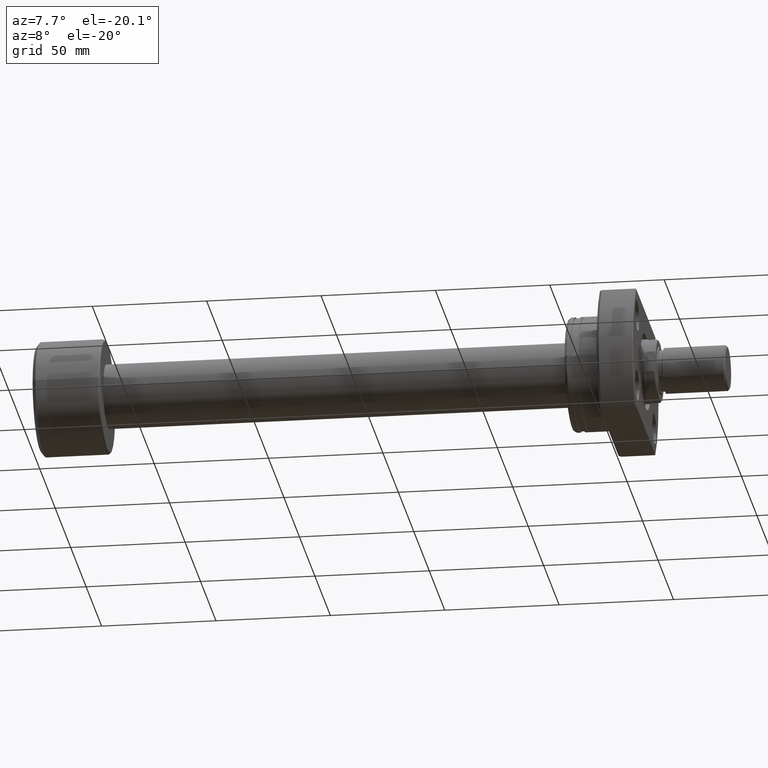
[diagram: clean part render]
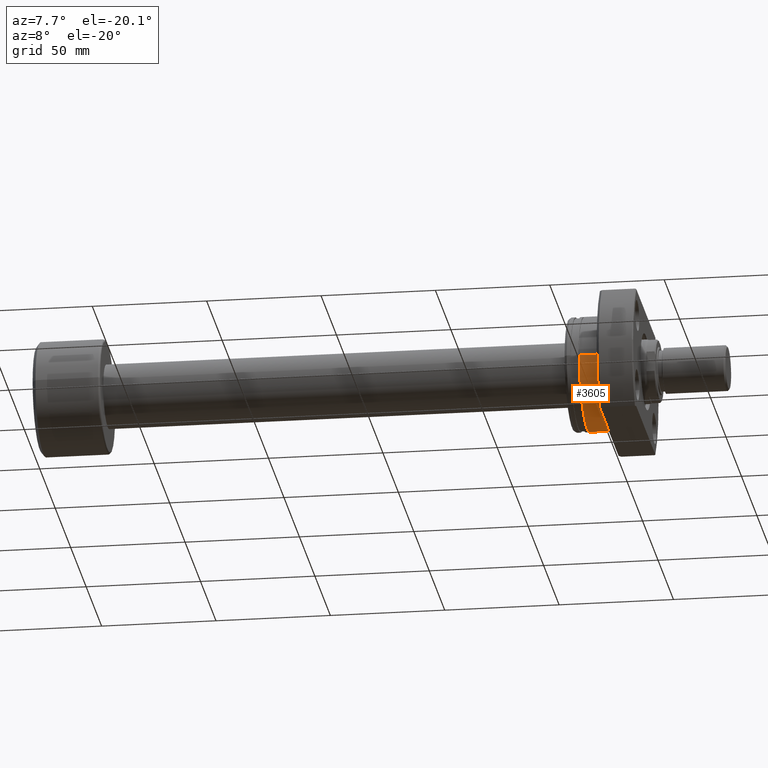
[diagram: same view with one face highlighted and labeled with its STEP entity id]
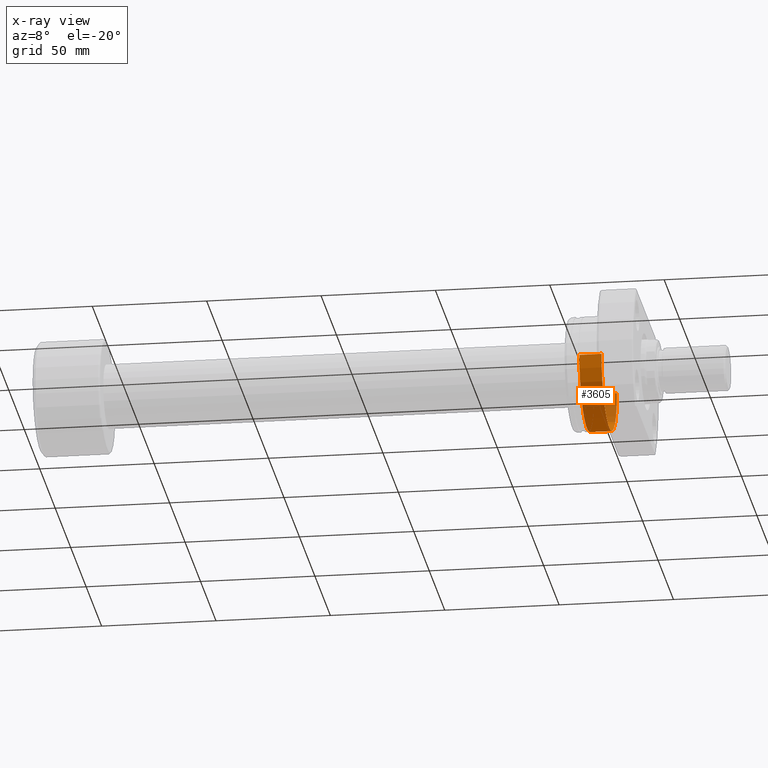
[diagram: x-ray of the same camera — body ghosted, the highlighted face saturated]
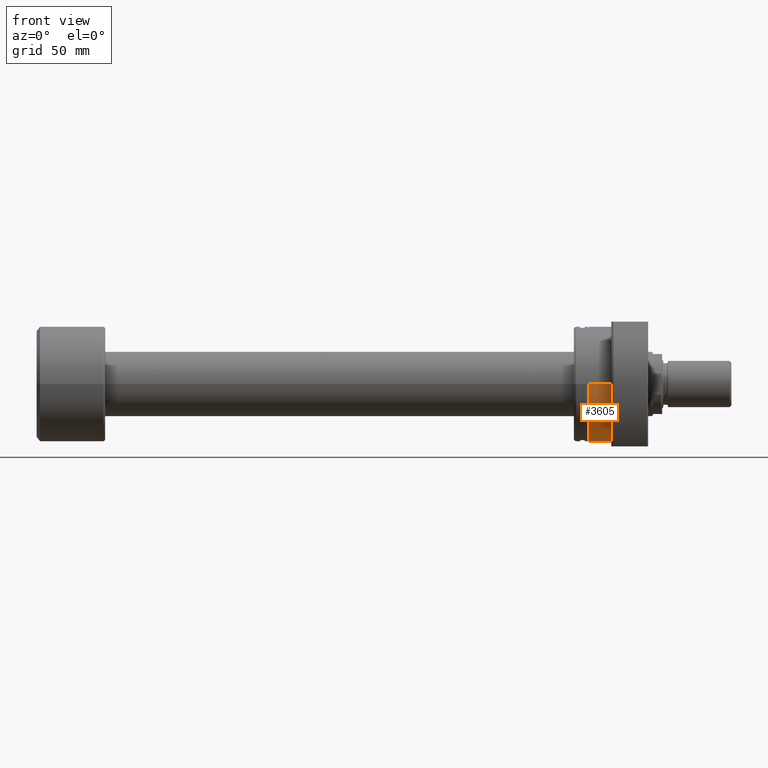
[diagram: same view with one face highlighted and labeled with its STEP entity id]
A machine part, auxiliary view. The second image highlights one B-rep face of the part: STEP entity #3605.
The next image is the same camera in x-ray: the body ghosted, the highlighted face saturated — about 16% of this face is hidden behind the body in this view.
A second angle (front view) of the same face is appended — the face is thin or edge-on in the first view.
In plain terms, the highlighted cylindrical surface (partial cylindrical patch) has radius 25 mm, axis along (1, 0, 0).
Its self-contained STEP definition (entity closure, byte-faithful):
#34 = CARTESIAN_POINT ( 'NONE',  ( 16.19999999999999929, -24.99999999999999645, 3.061616997868382648E-15 ) ) ;
#152 = VERTEX_POINT ( 'NONE', #1673 ) ;
#217 = DIRECTION ( 'NONE',  ( 0.000000000000000000, 1.000000000000000000, 0.000000000000000000 ) ) ;
#282 = FACE_OUTER_BOUND ( 'NONE', #721, .T. ) ;
#412 = EDGE_CURVE ( 'NONE', #543, #655, #3101, .T. ) ;
#464 = VECTOR ( 'NONE', #2814, 1000.000000000000000 ) ;
#499 = AXIS2_PLACEMENT_3D ( 'NONE', #2298, #568, #2230 ) ;
#521 = CYLINDRICAL_SURFACE ( 'NONE', #1891, 24.99999999999999645 ) ;
#543 = VERTEX_POINT ( 'NONE', #34 ) ;
#568 = DIRECTION ( 'NONE',  ( 1.000000000000000000, 2.928503215352364811E-17, -0.000000000000000000 ) ) ;
#655 = VERTEX_POINT ( 'NONE', #1088 ) ;
#721 = EDGE_LOOP ( 'NONE', ( #1759, #785, #914, #856 ) ) ;
#784 = DIRECTION ( 'NONE',  ( 1.000000000000000000, 2.928503215352364811E-17, -0.000000000000000000 ) ) ;
#785 = ORIENTED_EDGE ( 'NONE', *, *, #1040, .T. ) ;
#856 = ORIENTED_EDGE ( 'NONE', *, *, #412, .F. ) ;
#914 = ORIENTED_EDGE ( 'NONE', *, *, #3551, .T. ) ;
#928 = EDGE_CURVE ( 'NONE', #3682, #543, #1057, .T. ) ;
#1040 = EDGE_CURVE ( 'NONE', #3682, #152, #1097, .T. ) ;
#1057 = LINE ( 'NONE', #2203, #2899 ) ;
#1088 = CARTESIAN_POINT ( 'NONE',  ( 16.19999999999999929, 24.99999999999999645, 0.000000000000000000 ) ) ;
#1097 = CIRCLE ( 'NONE', #499, 24.99999999999999645 ) ;
#1458 = CARTESIAN_POINT ( 'NONE',  ( 6.499999999999784173, -24.99999999999999645, 3.061616997868382648E-15 ) ) ;
#1673 = CARTESIAN_POINT ( 'NONE',  ( 6.499999999999783284, 24.99999999999999645, 0.000000000000000000 ) ) ;
#1725 = DIRECTION ( 'NONE',  ( 0.000000000000000000, 1.000000000000000000, 0.000000000000000000 ) ) ;
#1759 = ORIENTED_EDGE ( 'NONE', *, *, #928, .F. ) ;
#1891 = AXIS2_PLACEMENT_3D ( 'NONE', #2530, #3152, #1725 ) ;
#1911 = CARTESIAN_POINT ( 'NONE',  ( 16.19999999999999929, 4.744175208870830402E-16, 0.000000000000000000 ) ) ;
#2203 = CARTESIAN_POINT ( 'NONE',  ( 32.20000000000000284, -24.99999999999999645, 3.061616997868382648E-15 ) ) ;
#2230 = DIRECTION ( 'NONE',  ( -3.469446951953614805E-17, 1.000000000000000000, 0.000000000000000000 ) ) ;
#2292 = LINE ( 'NONE', #3388, #464 ) ;
#2298 = CARTESIAN_POINT ( 'NONE',  ( 6.499999999999783284, 1.903527089978972293E-16, 0.000000000000000000 ) ) ;
#2343 = AXIS2_PLACEMENT_3D ( 'NONE', #1911, #3325, #217 ) ;
#2530 = CARTESIAN_POINT ( 'NONE',  ( 32.20000000000000284, 9.429780353434613113E-16, 0.000000000000000000 ) ) ;
#2814 = DIRECTION ( 'NONE',  ( 1.000000000000000000, 2.928503215352364811E-17, -0.000000000000000000 ) ) ;
#2899 = VECTOR ( 'NONE', #784, 1000.000000000000000 ) ;
#3101 = CIRCLE ( 'NONE', #2343, 24.99999999999999645 ) ;
#3152 = DIRECTION ( 'NONE',  ( 1.000000000000000000, 2.928503215352364811E-17, -0.000000000000000000 ) ) ;
#3325 = DIRECTION ( 'NONE',  ( 1.000000000000000000, 2.928503215352364811E-17, -0.000000000000000000 ) ) ;
#3388 = CARTESIAN_POINT ( 'NONE',  ( 32.20000000000000284, 24.99999999999999645, 0.000000000000000000 ) ) ;
#3551 = EDGE_CURVE ( 'NONE', #152, #655, #2292, .T. ) ;
#3605 = ADVANCED_FACE ( 'NONE', ( #282 ), #521, .T. ) ;
#3682 = VERTEX_POINT ( 'NONE', #1458 ) ;